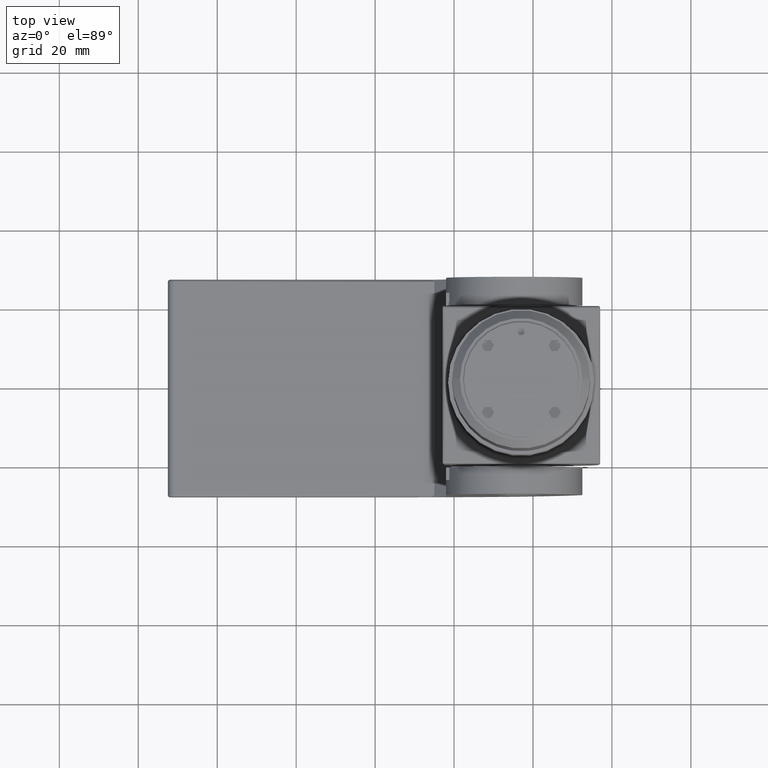
[diagram: clean part render]
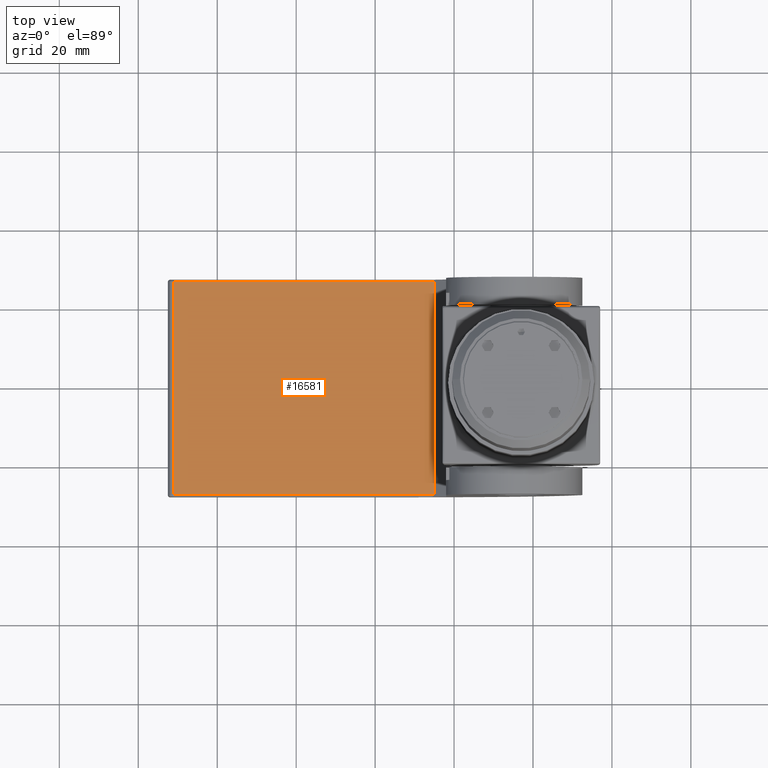
[diagram: same view with one face highlighted and labeled with its STEP entity id]
A machine part, top view. The second image highlights one B-rep face of the part: STEP entity #16581.
In plain terms, the highlighted planar face has unit normal (0, 0, -1).
Its self-contained STEP definition (entity closure, byte-faithful):
#154 = EDGE_CURVE ( 'NONE', #14753, #14968, #8968, .T. ) ;
#489 = DIRECTION ( 'NONE',  ( -1.000000000000000000, -0.000000000000000000, -0.000000000000000000 ) ) ;
#2029 = CARTESIAN_POINT ( 'NONE',  ( -52.49999999999999289, -27.00000000000000000, -17.49999999999999645 ) ) ;
#2498 = CARTESIAN_POINT ( 'NONE',  ( -50.99999999999999289, 27.00000000000000000, -17.49999999999999645 ) ) ;
#2684 = LINE ( 'NONE', #15037, #2714 ) ;
#2714 = VECTOR ( 'NONE', #12792, 1000.000000000000000 ) ;
#3824 = DIRECTION ( 'NONE',  ( -1.000000000000000000, 0.000000000000000000, -0.000000000000000000 ) ) ;
#4265 = ORIENTED_EDGE ( 'NONE', *, *, #8768, .T. ) ;
#4334 = LINE ( 'NONE', #2029, #24657 ) ;
#4933 = CARTESIAN_POINT ( 'NONE',  ( 14.99999999999999289, 27.50000000000000000, -17.49999999999999645 ) ) ;
#6055 = ORIENTED_EDGE ( 'NONE', *, *, #154, .T. ) ;
#7949 = VERTEX_POINT ( 'NONE', #18028 ) ;
#8649 = AXIS2_PLACEMENT_3D ( 'NONE', #23503, #11706, #3824 ) ;
#8768 = EDGE_CURVE ( 'NONE', #20842, #7949, #4334, .T. ) ;
#8968 = LINE ( 'NONE', #22265, #19714 ) ;
#11596 = ORIENTED_EDGE ( 'NONE', *, *, #21129, .T. ) ;
#11706 = DIRECTION ( 'NONE',  ( 0.000000000000000000, 0.000000000000000000, -1.000000000000000000 ) ) ;
#12608 = EDGE_LOOP ( 'NONE', ( #11596, #4265, #15920, #6055 ) ) ;
#12792 = DIRECTION ( 'NONE',  ( 0.000000000000000000, -1.000000000000000000, 0.000000000000000000 ) ) ;
#13617 = PLANE ( 'NONE',  #8649 ) ;
#13933 = CARTESIAN_POINT ( 'NONE',  ( -50.99999999999999289, -27.00000000000000000, -17.49999999999999645 ) ) ;
#14443 = VECTOR ( 'NONE', #20714, 1000.000000000000000 ) ;
#14753 = VERTEX_POINT ( 'NONE', #20438 ) ;
#14968 = VERTEX_POINT ( 'NONE', #2498 ) ;
#15037 = CARTESIAN_POINT ( 'NONE',  ( -50.99999999999999289, 27.50000000000000000, -17.49999999999999645 ) ) ;
#15920 = ORIENTED_EDGE ( 'NONE', *, *, #19203, .F. ) ;
#16581 = ADVANCED_FACE ( 'NONE', ( #16666 ), #13617, .F. ) ;
#16666 = FACE_OUTER_BOUND ( 'NONE', #12608, .T. ) ;
#18028 = CARTESIAN_POINT ( 'NONE',  ( 14.99999999999999289, -27.00000000000000000, -17.49999999999999645 ) ) ;
#19203 = EDGE_CURVE ( 'NONE', #14753, #7949, #23661, .T. ) ;
#19714 = VECTOR ( 'NONE', #489, 1000.000000000000000 ) ;
#20438 = CARTESIAN_POINT ( 'NONE',  ( 14.99999999999999289, 27.00000000000000000, -17.49999999999999645 ) ) ;
#20714 = DIRECTION ( 'NONE',  ( -0.000000000000000000, -1.000000000000000000, -0.000000000000000000 ) ) ;
#20842 = VERTEX_POINT ( 'NONE', #13933 ) ;
#21129 = EDGE_CURVE ( 'NONE', #14968, #20842, #2684, .T. ) ;
#21502 = DIRECTION ( 'NONE',  ( 1.000000000000000000, -0.000000000000000000, 0.000000000000000000 ) ) ;
#22265 = CARTESIAN_POINT ( 'NONE',  ( -51.00000000000000000, 27.00000000000000000, -17.49999999999999645 ) ) ;
#23503 = CARTESIAN_POINT ( 'NONE',  ( -52.49999999999999289, 27.50000000000000000, -17.49999999999999645 ) ) ;
#23661 = LINE ( 'NONE', #4933, #14443 ) ;
#24657 = VECTOR ( 'NONE', #21502, 1000.000000000000000 ) ;